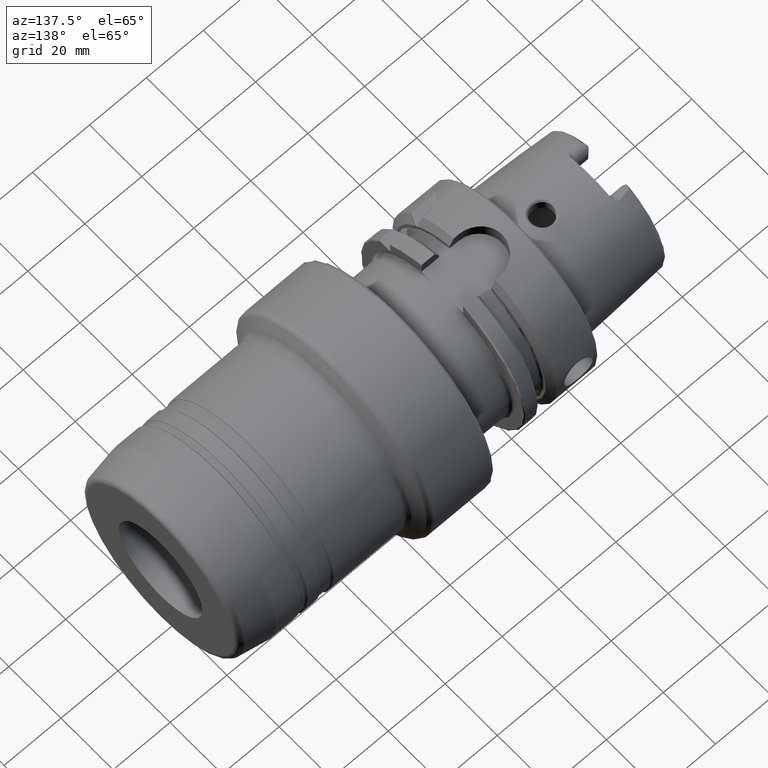
[diagram: clean part render]
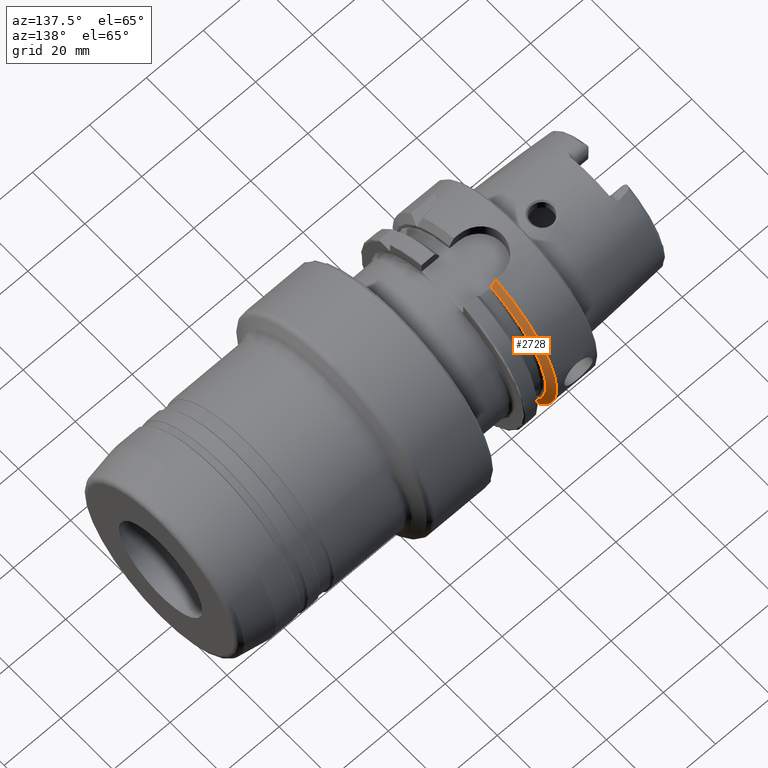
[diagram: same view with one face highlighted and labeled with its STEP entity id]
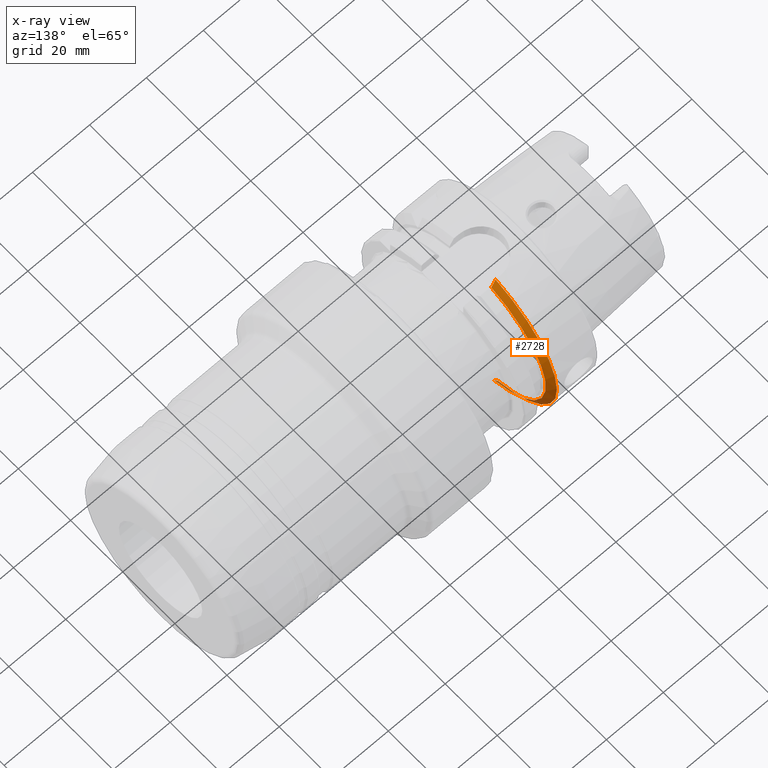
[diagram: x-ray of the same camera — body ghosted, the highlighted face saturated]
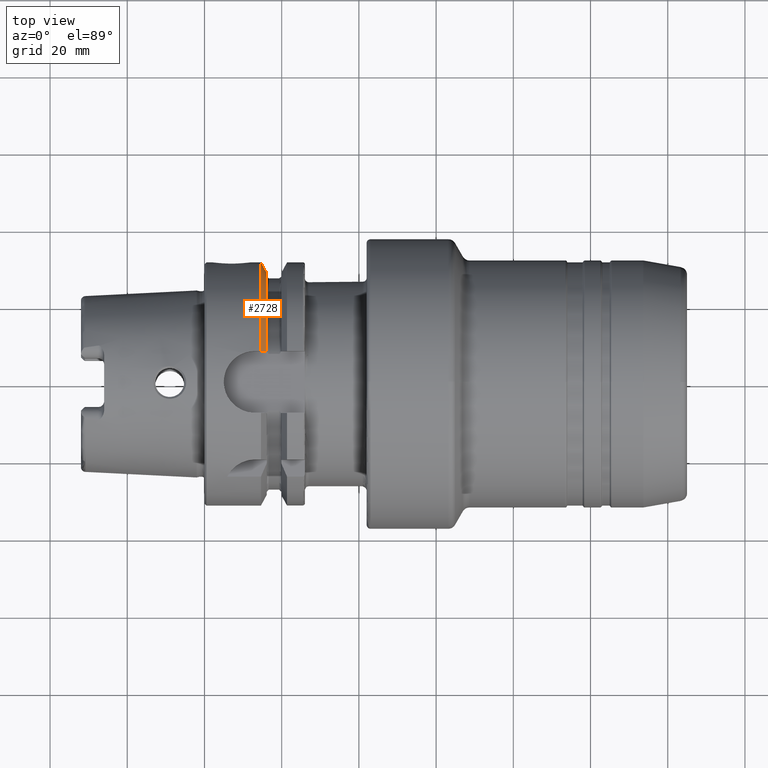
[diagram: same view with one face highlighted and labeled with its STEP entity id]
A machine part, auxiliary view. The second image highlights one B-rep face of the part: STEP entity #2728.
The next image is the same camera in x-ray: the body ghosted, the highlighted face saturated — about 4% of this face is hidden behind the body in this view.
A second angle (top view) of the same face is appended — the face is thin or edge-on in the first view.
In plain terms, the highlighted conical surface has half-angle 60 deg.
Its self-contained STEP definition (entity closure, byte-faithful):
#29=(
BOUNDED_CURVE()
B_SPLINE_CURVE(2,(#5575,#5576,#5577),.UNSPECIFIED.,.F.,.F.)
B_SPLINE_CURVE_WITH_KNOTS((3,3),(0.,0.311314369989023),.UNSPECIFIED.)
CURVE()
GEOMETRIC_REPRESENTATION_ITEM()
RATIONAL_B_SPLINE_CURVE((1.,1.00102053193627,1.))
REPRESENTATION_ITEM('')
);
#30=(
BOUNDED_CURVE()
B_SPLINE_CURVE(2,(#5588,#5589,#5590),.UNSPECIFIED.,.F.,.F.)
B_SPLINE_CURVE_WITH_KNOTS((3,3),(0.,0.308905667770379),.UNSPECIFIED.)
CURVE()
GEOMETRIC_REPRESENTATION_ITEM()
RATIONAL_B_SPLINE_CURVE((1.,1.00099999355806,1.))
REPRESENTATION_ITEM('')
);
#168=CONICAL_SURFACE('',#3054,30.1987976320958,1.0471975511966);
#538=FACE_OUTER_BOUND('',#686,.T.);
#686=EDGE_LOOP('',(#2269,#2270,#2271,#2272));
#916=CIRCLE('',#3055,31.5);
#917=CIRCLE('',#3056,28.8975952641916);
#1223=VERTEX_POINT('',#5572);
#1224=VERTEX_POINT('',#5574);
#1226=VERTEX_POINT('',#5585);
#1227=VERTEX_POINT('',#5587);
#1607=EDGE_CURVE('',#1224,#1223,#29,.T.);
#1610=EDGE_CURVE('',#1223,#1226,#916,.T.);
#1611=EDGE_CURVE('',#1226,#1227,#30,.T.);
#1612=EDGE_CURVE('',#1224,#1227,#917,.T.);
#2269=ORIENTED_EDGE('',*,*,#1607,.T.);
#2270=ORIENTED_EDGE('',*,*,#1610,.T.);
#2271=ORIENTED_EDGE('',*,*,#1611,.T.);
#2272=ORIENTED_EDGE('',*,*,#1612,.F.);
#2728=ADVANCED_FACE('',(#538),#168,.T.);
#3054=AXIS2_PLACEMENT_3D('',#5584,#3766,#3767);
#3055=AXIS2_PLACEMENT_3D('',#5586,#3768,#3769);
#3056=AXIS2_PLACEMENT_3D('',#5591,#3770,#3771);
#3766=DIRECTION('center_axis',(-1.,0.,0.));
#3767=DIRECTION('ref_axis',(0.,1.,0.));
#3768=DIRECTION('center_axis',(1.,0.,0.));
#3769=DIRECTION('ref_axis',(0.,0.,-1.));
#3770=DIRECTION('center_axis',(1.,0.,0.));
#3771=DIRECTION('ref_axis',(0.,0.,-1.));
#5572=CARTESIAN_POINT('',(14.6225009252407,9.,-30.1869176962472));
#5574=CARTESIAN_POINT('',(16.125,9.,-27.4603534582684));
#5575=CARTESIAN_POINT('Ctrl Pts',(16.125,9.,-27.4603534582684));
#5576=CARTESIAN_POINT('Ctrl Pts',(15.4092825889601,9.,-28.7648946319269));
#5577=CARTESIAN_POINT('Ctrl Pts',(14.6225009252407,9.00000000000001,-30.1869176962472));
#5584=CARTESIAN_POINT('Origin',(15.3737504626203,0.,0.));
#5585=CARTESIAN_POINT('',(14.6225009252407,8.,30.4671954731642));
#5586=CARTESIAN_POINT('Origin',(14.6225009252407,0.,0.));
#5587=CARTESIAN_POINT('',(16.125,8.,27.7681654426977));
#5588=CARTESIAN_POINT('Ctrl Pts',(14.6225009252407,8.,30.4671954731643));
#5589=CARTESIAN_POINT('Ctrl Pts',(15.408568570206,8.,29.0595327079894));
#5590=CARTESIAN_POINT('Ctrl Pts',(16.125,8.,27.7681654426977));
#5591=CARTESIAN_POINT('Origin',(16.125,0.,0.));